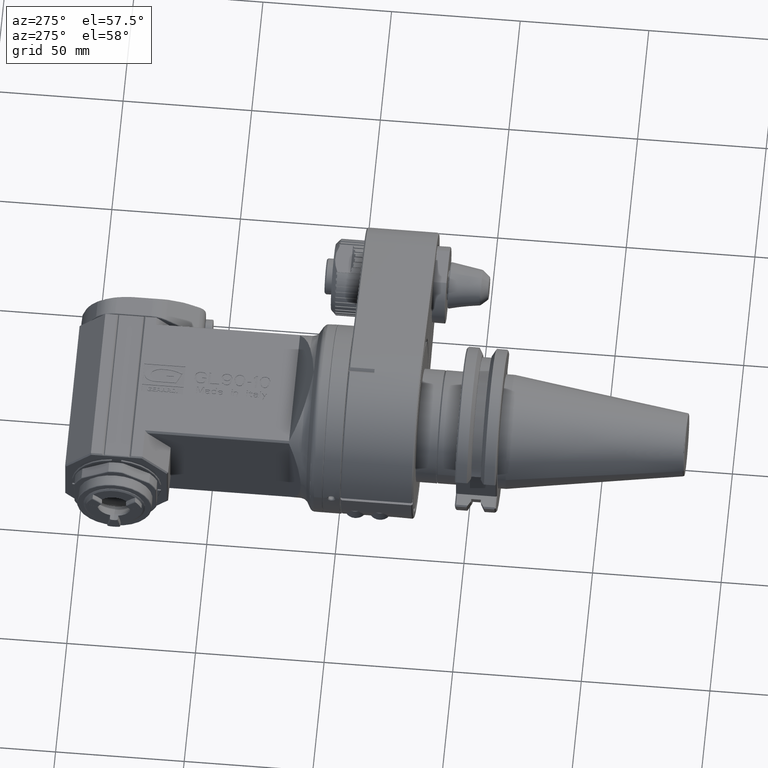
[diagram: clean part render]
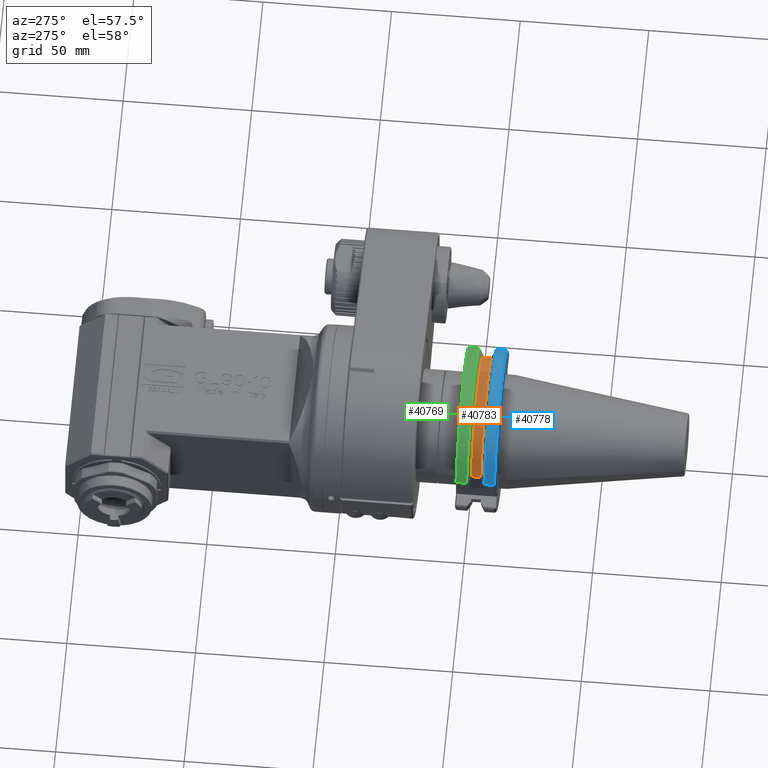
[diagram: same view with three faces highlighted in distinct colors, each labeled with its STEP entity id]
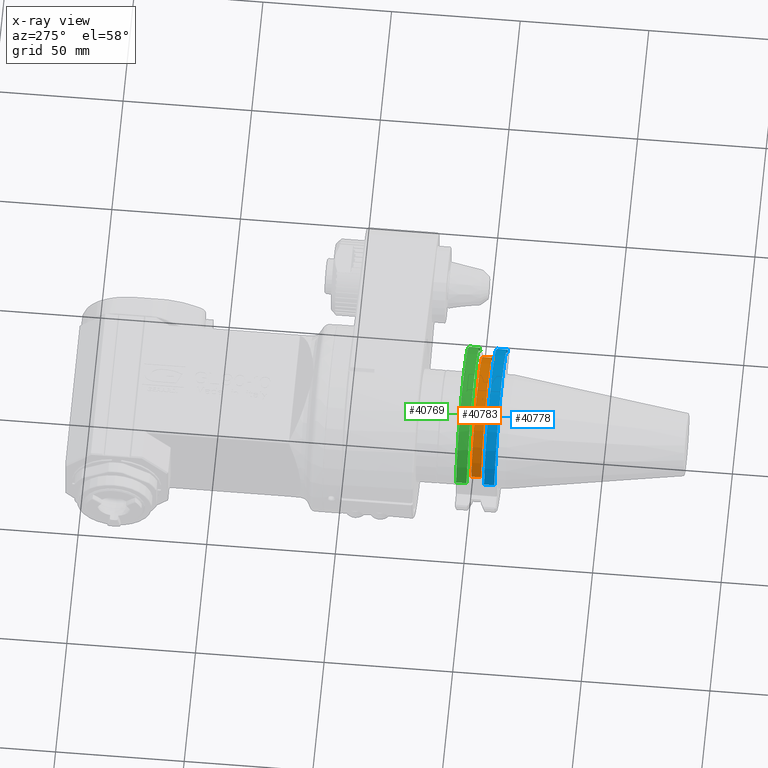
[diagram: x-ray of the same camera — body ghosted, the three highlighted faces saturated]
A machine part, auxiliary view with three faces highlighted in distinct colors.
The next image is the same camera in x-ray (body ghosted, the three faces saturated) — at least one of them is partly hidden behind the body in this view.
Their STEP definitions:

[orange] entity #40783 — the highlighted cylindrical surface (partial cylindrical patch) has radius 28.125 mm, axis along (0, -1, 0).
#821=CYLINDRICAL_SURFACE('',#43710,28.125);
#1832=CIRCLE('',#43709,28.125);
#1833=CIRCLE('',#43711,28.125);
#3971=FACE_OUTER_BOUND('',#6266,.T.);
#6266=EDGE_LOOP('',(#36799,#36800,#36801,#36802));
#10908=LINE('',#71715,#15567);
#10917=LINE('',#71795,#15576);
#15567=VECTOR('',#53972,3.75);
#15576=VECTOR('',#54003,3.75);
#19385=VERTEX_POINT('',#71712);
#19386=VERTEX_POINT('',#71714);
#19397=VERTEX_POINT('',#71792);
#19398=VERTEX_POINT('',#71794);
#25179=EDGE_CURVE('',#19386,#19385,#10908,.T.);
#25199=EDGE_CURVE('',#19397,#19398,#10917,.T.);
#25225=EDGE_CURVE('',#19398,#19385,#1832,.T.);
#25226=EDGE_CURVE('',#19386,#19397,#1833,.T.);
#36799=ORIENTED_EDGE('',*,*,#25199,.F.);
#36800=ORIENTED_EDGE('',*,*,#25226,.F.);
#36801=ORIENTED_EDGE('',*,*,#25179,.T.);
#36802=ORIENTED_EDGE('',*,*,#25225,.F.);
#40783=ADVANCED_FACE('',(#3971),#821,.T.);
#43709=AXIS2_PLACEMENT_3D('',#71885,#54048,#54049);
#43710=AXIS2_PLACEMENT_3D('',#71886,#54050,#54051);
#43711=AXIS2_PLACEMENT_3D('',#71887,#54052,#54053);
#53972=DIRECTION('',(0.,-1.,0.));
#54003=DIRECTION('',(0.,-1.,0.));
#54048=DIRECTION('center_axis',(0.,-1.,0.));
#54049=DIRECTION('ref_axis',(0.958163263492286,0.,0.286222222222196));
#54050=DIRECTION('center_axis',(0.,-1.,0.));
#54051=DIRECTION('ref_axis',(-1.,0.,0.));
#54052=DIRECTION('center_axis',(0.,1.,0.));
#54053=DIRECTION('ref_axis',(-0.958163263492286,0.,0.286222222222196));
#71712=CARTESIAN_POINT('',(-26.94834178572,-32.875,8.05));
#71714=CARTESIAN_POINT('',(-26.94834178572,-29.125,8.05));
#71715=CARTESIAN_POINT('',(-26.94834178572,-29.125,8.05));
#71792=CARTESIAN_POINT('',(26.94834178572,-29.125,8.05));
#71794=CARTESIAN_POINT('',(26.94834178572,-32.875,8.05));
#71795=CARTESIAN_POINT('',(26.94834178572,-29.125,8.05));
#71885=CARTESIAN_POINT('Origin',(-1.58507416767E-14,-32.875,0.));
#71886=CARTESIAN_POINT('Origin',(-1.511902547247E-14,-26.90008376511,0.));
#71887=CARTESIAN_POINT('Origin',(-1.539149912702E-14,-29.125,0.));

[blue] entity #40778 — the highlighted cylindrical surface (partial cylindrical patch) has radius 31.725 mm, axis along (0, -1, 0).
#606=B_SPLINE_CURVE_WITH_KNOTS('',3,(#71831,#71832,#71833,#71834,#71835,
#71836,#71837,#71838,#71839,#71840,#71841,#71842,#71843,#71844,#71845,#71846,
#71847,#71848,#71849,#71850,#71851,#71852,#71853,#71854,#71855,#71856,#71857,
#71858,#71859,#71860),.UNSPECIFIED.,.F.,.F.,(4,2,2,2,2,2,2,2,2,2,2,2,2,
2,4),(-13.4903843749374,-13.1454408538674,-12.5479247263115,-11.9504085987557,
-11.3528913804032,-10.7553741620506,-10.1578569436981,-9.56033972534556,
-8.96282021204387,-8.36530069874219,-7.7677811854405,-7.17026167213882,
-6.57274000408886,-5.97521833603891,-5.63026418184884),.UNSPECIFIED.);
#820=CYLINDRICAL_SURFACE('',#43700,31.725);
#1828=CIRCLE('',#43701,31.725);
#3966=FACE_OUTER_BOUND('',#6261,.T.);
#6261=EDGE_LOOP('',(#36775,#36776,#36777,#36778));
#10927=LINE('',#71873,#15586);
#10928=LINE('',#71876,#15587);
#15586=VECTOR('',#54029,10.);
#15587=VECTOR('',#54032,10.);
#19410=VERTEX_POINT('',#71829);
#19411=VERTEX_POINT('',#71830);
#19413=VERTEX_POINT('',#71872);
#19414=VERTEX_POINT('',#71874);
#25214=EDGE_CURVE('',#19410,#19411,#606,.T.);
#25218=EDGE_CURVE('',#19411,#19413,#10927,.T.);
#25219=EDGE_CURVE('',#19413,#19414,#1828,.T.);
#25220=EDGE_CURVE('',#19414,#19410,#10928,.T.);
#36775=ORIENTED_EDGE('',*,*,#25214,.T.);
#36776=ORIENTED_EDGE('',*,*,#25218,.T.);
#36777=ORIENTED_EDGE('',*,*,#25219,.T.);
#36778=ORIENTED_EDGE('',*,*,#25220,.T.);
#40778=ADVANCED_FACE('',(#3966),#820,.T.);
#43700=AXIS2_PLACEMENT_3D('',#71871,#54027,#54028);
#43701=AXIS2_PLACEMENT_3D('',#71875,#54030,#54031);
#54027=DIRECTION('center_axis',(0.,-1.,0.));
#54028=DIRECTION('ref_axis',(-1.,0.,0.));
#54029=DIRECTION('',(0.,1.,0.));
#54030=DIRECTION('center_axis',(0.,-1.,0.));
#54031=DIRECTION('ref_axis',(0.961781225115764,0.,0.27381905524419));
#54032=DIRECTION('',(0.,-1.,0.));
#71829=CARTESIAN_POINT('',(-30.5125093670169,-38.4000562374422,8.68690952848178));
#71830=CARTESIAN_POINT('',(30.5125093665517,-38.3997560008328,8.68690952665089));
#71831=CARTESIAN_POINT('Ctrl Pts',(-30.5125093665876,-38.4000562384596,
8.68690952835955));
#71832=CARTESIAN_POINT('Ctrl Pts',(-30.1794498658968,-38.4000564866619,
9.85677104254722));
#71833=CARTESIAN_POINT('Ctrl Pts',(-29.7773505908023,-38.4000563724547,
11.0125353159861));
#71834=CARTESIAN_POINT('Ctrl Pts',(-28.5006741943371,-38.4000550624237,
14.094707949799));
#71835=CARTESIAN_POINT('Ctrl Pts',(-27.4926485935221,-38.4000531249308,
15.9683479150704));
#71836=CARTESIAN_POINT('Ctrl Pts',(-25.1630694735667,-38.4000472520714,
19.4333166621675));
#71837=CARTESIAN_POINT('Ctrl Pts',(-23.8413708169356,-38.4000433158334,
21.0245478624739));
#71838=CARTESIAN_POINT('Ctrl Pts',(-21.0246567949251,-38.4000340007655,
23.841275058005));
#71839=CARTESIAN_POINT('Ctrl Pts',(-19.4334287100462,-38.4000283037518,
25.1629832396501));
#71840=CARTESIAN_POINT('Ctrl Pts',(-15.968464046062,-38.4000150136531,27.4925814167565));
#71841=CARTESIAN_POINT('Ctrl Pts',(-14.094825049963,-38.4000074212823,28.500616550562));
#71842=CARTESIAN_POINT('Ctrl Pts',(-10.1866514771356,-38.3999908042609,
30.11945166557));
#71843=CARTESIAN_POINT('Ctrl Pts',(-8.14900460143674,-38.3999817663774,
30.7315408164492));
#71844=CARTESIAN_POINT('Ctrl Pts',(-4.05163574982787,-38.3999629024712,
31.5343958987331));
#71845=CARTESIAN_POINT('Ctrl Pts',(-1.99188014597024,-38.3999530760064,
31.7249902004691));
#71846=CARTESIAN_POINT('Ctrl Pts',(1.99157562611406,-38.3999334776946,31.7250097988007));
#71847=CARTESIAN_POINT('Ctrl Pts',(4.05134076551089,-38.3999230364155,31.5344343023349));
#71848=CARTESIAN_POINT('Ctrl Pts',(8.14873189402284,-38.3999015826946,30.731613645982));
#71849=CARTESIAN_POINT('Ctrl Pts',(10.1863915101428,-38.3998905703641,30.119540119245));
#71850=CARTESIAN_POINT('Ctrl Pts',(14.0945926750229,-38.399868731388,28.5007320312639));
#71851=CARTESIAN_POINT('Ctrl Pts',(15.9682465646153,-38.3998578873507,27.4927083136279));
#71852=CARTESIAN_POINT('Ctrl Pts',(19.4332417697058,-38.3998370825567,25.1631282452468));
#71853=CARTESIAN_POINT('Ctrl Pts',(21.0244855015071,-38.3998271220458,23.841426752723));
#71854=CARTESIAN_POINT('Ctrl Pts',(23.8412375901512,-38.3998087208733,21.0247006872811));
#71855=CARTESIAN_POINT('Ctrl Pts',(25.1629578984994,-38.3997996516786,19.4334631098124));
#71856=CARTESIAN_POINT('Ctrl Pts',(27.492575612628,-38.3997826016249,15.968475970675));
#71857=CARTESIAN_POINT('Ctrl Pts',(28.5006181618725,-38.3997746202091,14.0948239956405));
#71858=CARTESIAN_POINT('Ctrl Pts',(29.7773263899779,-38.3997633677364,11.012604842061));
#71859=CARTESIAN_POINT('Ctrl Pts',(30.1794398508824,-38.3997595252355,9.85680622021402));
#71860=CARTESIAN_POINT('Ctrl Pts',(30.5125093670349,-38.3997559996867,8.68690952678846));
#71871=CARTESIAN_POINT('Origin',(0.,-18.625,0.));
#71872=CARTESIAN_POINT('',(30.5125093668,-34.37611069989,8.686909527622));
#71873=CARTESIAN_POINT('',(30.5125093667979,-18.625,8.68690952762072));
#71874=CARTESIAN_POINT('',(-30.5125093668,-34.37611069989,8.686909527622));
#71875=CARTESIAN_POINT('Origin',(-1.603457471807E-14,-34.37611069989,0.));
#71876=CARTESIAN_POINT('',(-30.5125093667979,-18.625,8.68690952762072));

[green] entity #40769 — the highlighted cylindrical surface (partial cylindrical patch) has radius 31.725 mm, axis along (0, -1, 0).
#605=B_SPLINE_CURVE_WITH_KNOTS('',3,(#71744,#71745,#71746,#71747,#71748,
#71749,#71750,#71751,#71752,#71753,#71754,#71755,#71756,#71757,#71758,#71759,
#71760,#71761,#71762,#71763,#71764,#71765,#71766,#71767,#71768,#71769,#71770,
#71771,#71772,#71773),.UNSPECIFIED.,.F.,.F.,(4,2,2,2,2,2,2,2,2,2,2,2,2,
2,4),(5.63026155677245,5.97520563010416,6.57272780840591,7.17024998670765,
7.76777143167957,8.36529287665149,8.96281432162341,9.56033576659532,10.1578552064949,
10.7553746463945,11.3528940862942,11.9504135261938,12.5479308638191,13.1454482014445,
13.4903829847056),.UNSPECIFIED.);
#819=CYLINDRICAL_SURFACE('',#43688,31.725);
#1824=CIRCLE('',#43687,31.725);
#3957=FACE_OUTER_BOUND('',#6251,.T.);
#6251=EDGE_LOOP('',(#36720,#36721,#36722,#36723));
#10910=LINE('',#71725,#15569);
#10912=LINE('',#71743,#15571);
#15569=VECTOR('',#53978,10.);
#15571=VECTOR('',#53990,10.);
#19388=VERTEX_POINT('',#71722);
#19389=VERTEX_POINT('',#71724);
#19393=VERTEX_POINT('',#71738);
#19394=VERTEX_POINT('',#71742);
#25183=EDGE_CURVE('',#19389,#19388,#10910,.T.);
#25189=EDGE_CURVE('',#19388,#19393,#1824,.T.);
#25190=EDGE_CURVE('',#19393,#19394,#10912,.T.);
#25191=EDGE_CURVE('',#19394,#19389,#605,.T.);
#36720=ORIENTED_EDGE('',*,*,#25183,.T.);
#36721=ORIENTED_EDGE('',*,*,#25189,.T.);
#36722=ORIENTED_EDGE('',*,*,#25190,.T.);
#36723=ORIENTED_EDGE('',*,*,#25191,.T.);
#40769=ADVANCED_FACE('',(#3957),#819,.T.);
#43687=AXIS2_PLACEMENT_3D('',#71740,#53986,#53987);
#43688=AXIS2_PLACEMENT_3D('',#71741,#53988,#53989);
#53978=DIRECTION('',(0.,-1.,0.));
#53986=DIRECTION('center_axis',(0.,1.,0.));
#53987=DIRECTION('ref_axis',(-0.961781225115764,0.,0.27381905524419));
#53988=DIRECTION('center_axis',(0.,-1.,0.));
#53989=DIRECTION('ref_axis',(-1.,0.,0.));
#53990=DIRECTION('',(0.,1.,0.));
#71722=CARTESIAN_POINT('',(-30.5125093668,-27.62388930011,8.686909527622));
#71724=CARTESIAN_POINT('',(-30.512509366988,-23.4997798553938,8.6869095283672));
#71725=CARTESIAN_POINT('',(-30.5125093667979,-18.625,8.68690952762072));
#71738=CARTESIAN_POINT('',(30.5125093668,-27.62388930011,8.686909527622));
#71740=CARTESIAN_POINT('Origin',(-1.520766608564E-14,-27.62388930011,0.));
#71741=CARTESIAN_POINT('Origin',(0.,-18.625,0.));
#71742=CARTESIAN_POINT('',(30.5125093665216,-23.5000421689377,8.68690952653382));
#71743=CARTESIAN_POINT('',(30.5125093667979,-18.625,8.68690952762072));
#71744=CARTESIAN_POINT('Ctrl Pts',(30.5125093670635,-23.5000421702221,8.68690952668809));
#71745=CARTESIAN_POINT('Ctrl Pts',(30.1794495136061,-23.5000431662273,9.85677228020119));
#71746=CARTESIAN_POINT('Ctrl Pts',(29.777349793689,-23.5000438362118,11.012537595414));
#71747=CARTESIAN_POINT('Ctrl Pts',(28.5006649836692,-23.5000447444609,14.0947295713568));
#71748=CARTESIAN_POINT('Ctrl Pts',(27.4926277836625,-23.5000442995787,15.9683863701305));
#71749=CARTESIAN_POINT('Ctrl Pts',(25.163019294207,-23.5000414762435,19.433383794804));
#71750=CARTESIAN_POINT('Ctrl Pts',(23.8413028603839,-23.5000390969639,21.0246268341338));
#71751=CARTESIAN_POINT('Ctrl Pts',(21.0245535993383,-23.5000328344254,23.8413672386114));
#71752=CARTESIAN_POINT('Ctrl Pts',(19.4333084654762,-23.500028737257,25.1630772687844));
#71753=CARTESIAN_POINT('Ctrl Pts',(15.9683082956778,-23.500018677318,27.4926729461388));
#71754=CARTESIAN_POINT('Ctrl Pts',(14.0946508453118,-23.5000127152679,28.5007037371206));
#71755=CARTESIAN_POINT('Ctrl Pts',(10.1864408694942,-23.4999992752176,30.1195238736383));
#71756=CARTESIAN_POINT('Ctrl Pts',(8.14877597945309,-23.4999917865141,30.731602392095));
#71757=CARTESIAN_POINT('Ctrl Pts',(4.05137324853309,-23.4999758398931,31.5344305537646));
#71758=CARTESIAN_POINT('Ctrl Pts',(1.99160177991479,-23.499967381475,31.725008561196));
#71759=CARTESIAN_POINT('Ctrl Pts',(-1.99186783625004,-23.4999502585428,
31.7249914382466));
#71760=CARTESIAN_POINT('Ctrl Pts',(-4.05163097375171,-23.4999410091566,
31.5343970007579));
#71761=CARTESIAN_POINT('Ctrl Pts',(-8.14901424151108,-23.4999217305211,
30.7315387613527));
#71762=CARTESIAN_POINT('Ctrl Pts',(-10.1866680003319,-23.4999117014835,
30.1194465921757));
#71763=CARTESIAN_POINT('Ctrl Pts',(-14.0948538691447,-23.4998915427842,
28.5006028423149));
#71764=CARTESIAN_POINT('Ctrl Pts',(-15.9684983071515,-23.4998813970689,
27.4925620771031));
#71765=CARTESIAN_POINT('Ctrl Pts',(-19.433471793356,-23.4998616685323,25.1629505782948));
#71766=CARTESIAN_POINT('Ctrl Pts',(-21.0247032565867,-23.4998520858294,
23.8412347038984));
#71767=CARTESIAN_POINT('Ctrl Pts',(-23.8414192590816,-23.4998341329323,
21.0244933121396));
#71768=CARTESIAN_POINT('Ctrl Pts',(-25.1631167759868,-23.4998251495097,
19.4332558445334));
#71769=CARTESIAN_POINT('Ctrl Pts',(-27.4926915460726,-23.499807945365,15.9682744889217));
#71770=CARTESIAN_POINT('Ctrl Pts',(-28.5007139384085,-23.4997997242216,
14.0946281830173));
#71771=CARTESIAN_POINT('Ctrl Pts',(-29.7773709376033,-23.4997878404827,
11.0124768511574));
#71772=CARTESIAN_POINT('Ctrl Pts',(-30.1794582635883,-23.4997837137477,
9.85674154592198));
#71773=CARTESIAN_POINT('Ctrl Pts',(-30.5125093666156,-23.4997798545118,
8.68690952826118));